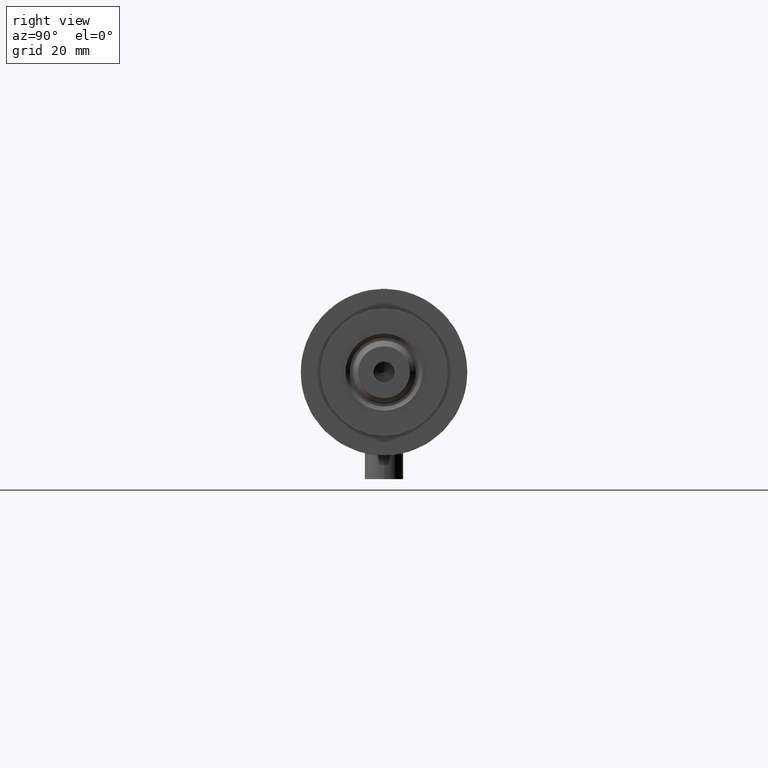
[diagram: clean part render]
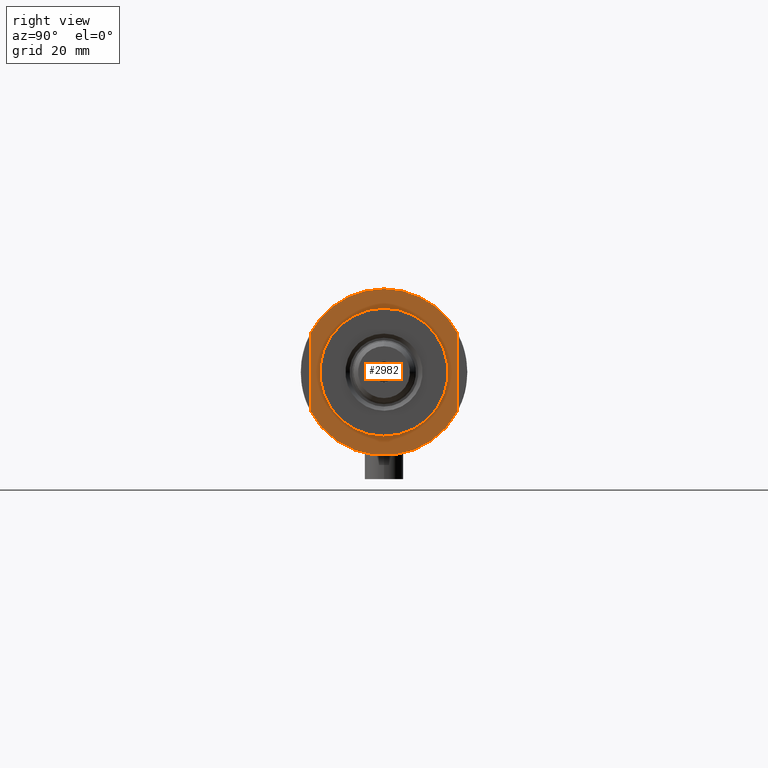
[diagram: same view with one face highlighted and labeled with its STEP entity id]
A machine part, right view. The second image highlights one B-rep face of the part: STEP entity #2982.
In plain terms, the highlighted planar face has unit normal (1, 0, -0).
Its self-contained STEP definition (entity closure, byte-faithful):
#18 = EDGE_CURVE ( 'NONE', #2482, #3929, #3502, .T. ) ;
#22 = DIRECTION ( 'NONE',  ( 1.000000000000000000, 0.000000000000000000, 0.000000000000000000 ) ) ;
#105 = VECTOR ( 'NONE', #1527, 1000.000000000000000 ) ;
#160 = DIRECTION ( 'NONE',  ( 0.000000000000000000, 0.000000000000000000, 1.000000000000000000 ) ) ;
#174 = ORIENTED_EDGE ( 'NONE', *, *, #3231, .T. ) ;
#181 = DIRECTION ( 'NONE',  ( 0.000000000000000000, 0.000000000000000000, 1.000000000000000000 ) ) ;
#320 = DIRECTION ( 'NONE',  ( -0.000000000000000000, -0.000000000000000000, -1.000000000000000000 ) ) ;
#422 = AXIS2_PLACEMENT_3D ( 'NONE', #2511, #1823, #3644 ) ;
#567 = PLANE ( 'NONE',  #1141 ) ;
#602 = CIRCLE ( 'NONE', #4742, 26.00000000000000355 ) ;
#623 = CARTESIAN_POINT ( 'NONE',  ( 12.12435565298215323, -22.99999999999999645, 15.50000000000000000 ) ) ;
#707 = EDGE_LOOP ( 'NONE', ( #2514, #1895, #3523, #174, #4275 ) ) ;
#786 = CARTESIAN_POINT ( 'NONE',  ( -12.12435565298215145, 23.00000000000000355, 15.50000000000000000 ) ) ;
#941 = FACE_OUTER_BOUND ( 'NONE', #707, .T. ) ;
#1042 = EDGE_CURVE ( 'NONE', #4712, #1179, #3080, .T. ) ;
#1092 = CARTESIAN_POINT ( 'NONE',  ( -12.12435565298215323, -22.99999999999999645, 15.50000000000000000 ) ) ;
#1101 = DIRECTION ( 'NONE',  ( 1.000000000000000000, 0.000000000000000000, 0.000000000000000000 ) ) ;
#1141 = AXIS2_PLACEMENT_3D ( 'NONE', #3528, #181, #3176 ) ;
#1179 = VERTEX_POINT ( 'NONE', #1472 ) ;
#1185 = CARTESIAN_POINT ( 'NONE',  ( 0.000000000000000000, 0.000000000000000000, 15.50000000000000000 ) ) ;
#1457 = AXIS2_PLACEMENT_3D ( 'NONE', #2212, #320, #3283 ) ;
#1472 = CARTESIAN_POINT ( 'NONE',  ( 20.00000000000000000, 0.000000000000000000, 15.50000000000000000 ) ) ;
#1527 = DIRECTION ( 'NONE',  ( -1.000000000000000000, -0.000000000000000000, -0.000000000000000000 ) ) ;
#1823 = DIRECTION ( 'NONE',  ( -0.000000000000000000, -0.000000000000000000, -1.000000000000000000 ) ) ;
#1864 = AXIS2_PLACEMENT_3D ( 'NONE', #3857, #3437, #4544 ) ;
#1895 = ORIENTED_EDGE ( 'NONE', *, *, #2919, .T. ) ;
#1900 = CARTESIAN_POINT ( 'NONE',  ( -20.00000000000000000, 2.449293598294706513E-15, 15.50000000000000000 ) ) ;
#2212 = CARTESIAN_POINT ( 'NONE',  ( 0.000000000000000000, 0.000000000000000000, 15.50000000000000000 ) ) ;
#2350 = ORIENTED_EDGE ( 'NONE', *, *, #2709, .T. ) ;
#2469 = CARTESIAN_POINT ( 'NONE',  ( 0.000000000000000000, 0.000000000000000000, 15.50000000000000000 ) ) ;
#2482 = VERTEX_POINT ( 'NONE', #623 ) ;
#2511 = CARTESIAN_POINT ( 'NONE',  ( 0.000000000000000000, 0.000000000000000000, 15.50000000000000000 ) ) ;
#2514 = ORIENTED_EDGE ( 'NONE', *, *, #18, .F. ) ;
#2580 = VECTOR ( 'NONE', #1101, 1000.000000000000000 ) ;
#2646 = CIRCLE ( 'NONE', #1864, 26.00000000000000355 ) ;
#2686 = LINE ( 'NONE', #786, #2580 ) ;
#2709 = EDGE_CURVE ( 'NONE', #1179, #4712, #4034, .T. ) ;
#2739 = DIRECTION ( 'NONE',  ( 0.000000000000000000, 0.000000000000000000, 1.000000000000000000 ) ) ;
#2919 = EDGE_CURVE ( 'NONE', #2482, #4682, #602, .T. ) ;
#2982 = ADVANCED_FACE ( 'NONE', ( #3557, #941 ), #567, .T. ) ;
#3003 = VERTEX_POINT ( 'NONE', #3362 ) ;
#3080 = CIRCLE ( 'NONE', #422, 20.00000000000000000 ) ;
#3176 = DIRECTION ( 'NONE',  ( 1.000000000000000000, 0.000000000000000000, -0.000000000000000000 ) ) ;
#3189 = EDGE_LOOP ( 'NONE', ( #2350, #3721 ) ) ;
#3231 = EDGE_CURVE ( 'NONE', #3592, #3003, #4745, .T. ) ;
#3283 = DIRECTION ( 'NONE',  ( 1.000000000000000000, 0.000000000000000000, 0.000000000000000000 ) ) ;
#3362 = CARTESIAN_POINT ( 'NONE',  ( -26.00000000000000355, 0.000000000000000000, 15.50000000000000000 ) ) ;
#3399 = AXIS2_PLACEMENT_3D ( 'NONE', #1185, #2739, #22 ) ;
#3437 = DIRECTION ( 'NONE',  ( 0.000000000000000000, 0.000000000000000000, 1.000000000000000000 ) ) ;
#3502 = LINE ( 'NONE', #4118, #105 ) ;
#3523 = ORIENTED_EDGE ( 'NONE', *, *, #4701, .F. ) ;
#3528 = CARTESIAN_POINT ( 'NONE',  ( 0.000000000000000000, 0.000000000000000000, 15.50000000000000000 ) ) ;
#3557 = FACE_BOUND ( 'NONE', #3189, .T. ) ;
#3592 = VERTEX_POINT ( 'NONE', #4465 ) ;
#3644 = DIRECTION ( 'NONE',  ( 1.000000000000000000, 0.000000000000000000, 0.000000000000000000 ) ) ;
#3700 = CARTESIAN_POINT ( 'NONE',  ( 12.12435565298214790, 23.00000000000000355, 15.50000000000000000 ) ) ;
#3721 = ORIENTED_EDGE ( 'NONE', *, *, #1042, .T. ) ;
#3857 = CARTESIAN_POINT ( 'NONE',  ( 0.000000000000000000, 0.000000000000000000, 15.50000000000000000 ) ) ;
#3929 = VERTEX_POINT ( 'NONE', #1092 ) ;
#3952 = DIRECTION ( 'NONE',  ( 1.000000000000000000, 0.000000000000000000, 0.000000000000000000 ) ) ;
#4034 = CIRCLE ( 'NONE', #1457, 20.00000000000000000 ) ;
#4118 = CARTESIAN_POINT ( 'NONE',  ( -12.12435565298215145, -22.99999999999999645, 15.50000000000000000 ) ) ;
#4275 = ORIENTED_EDGE ( 'NONE', *, *, #4287, .T. ) ;
#4287 = EDGE_CURVE ( 'NONE', #3003, #3929, #2646, .T. ) ;
#4465 = CARTESIAN_POINT ( 'NONE',  ( -12.12435565298214613, 23.00000000000000355, 15.50000000000000000 ) ) ;
#4544 = DIRECTION ( 'NONE',  ( 1.000000000000000000, 0.000000000000000000, 0.000000000000000000 ) ) ;
#4682 = VERTEX_POINT ( 'NONE', #3700 ) ;
#4701 = EDGE_CURVE ( 'NONE', #3592, #4682, #2686, .T. ) ;
#4712 = VERTEX_POINT ( 'NONE', #1900 ) ;
#4742 = AXIS2_PLACEMENT_3D ( 'NONE', #2469, #160, #3952 ) ;
#4745 = CIRCLE ( 'NONE', #3399, 26.00000000000000355 ) ;